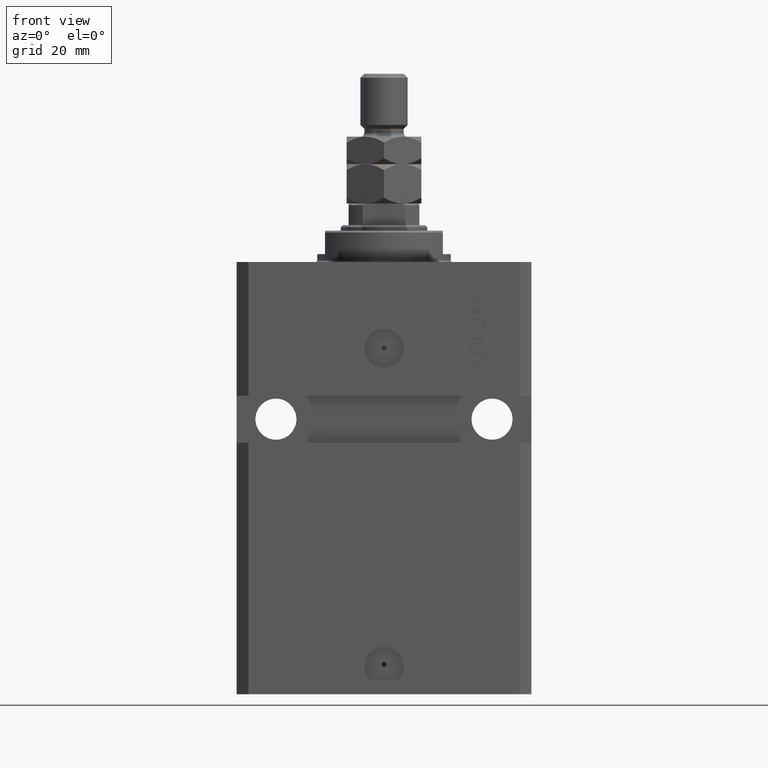
[diagram: clean part render]
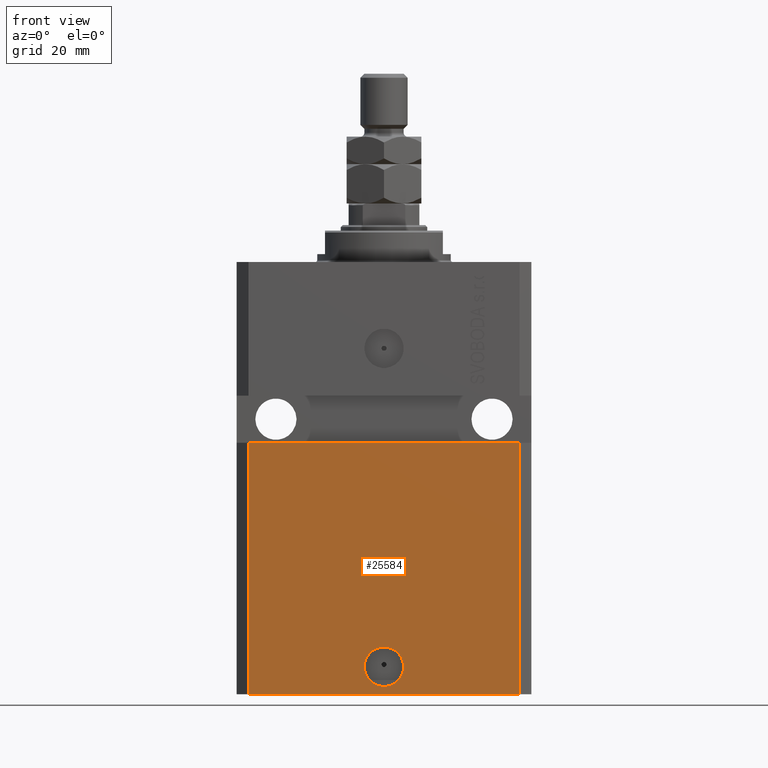
[diagram: same view with one face highlighted and labeled with its STEP entity id]
A machine part, front view. The second image highlights one B-rep face of the part: STEP entity #25584.
In plain terms, the highlighted planar face has unit normal (0, -1, 0).
Its self-contained STEP definition (entity closure, byte-faithful):
#333 = CIRCLE ( 'NONE', #4248, 5.000000000000006217 ) ;
#442 = EDGE_CURVE ( 'NONE', #43122, #3457, #333, .T. ) ;
#1061 = VERTEX_POINT ( 'NONE', #10013 ) ;
#1438 = DIRECTION ( 'NONE',  ( 1.000000000000000000, 0.000000000000000000, 0.000000000000000000 ) ) ;
#1645 = CARTESIAN_POINT ( 'NONE',  ( -37.50000000000000000, -27.50000000000000000, -46.00000000000000000 ) ) ;
#3457 = VERTEX_POINT ( 'NONE', #40138 ) ;
#3612 = VERTEX_POINT ( 'NONE', #37442 ) ;
#3928 = EDGE_CURVE ( 'NONE', #3457, #43122, #38749, .T. ) ;
#3953 = ORIENTED_EDGE ( 'NONE', *, *, #9927, .T. ) ;
#4248 = AXIS2_PLACEMENT_3D ( 'NONE', #41679, #19166, #44872 ) ;
#4925 = EDGE_CURVE ( 'NONE', #19337, #14293, #6098, .T. ) ;
#5312 = EDGE_LOOP ( 'NONE', ( #39299, #35615 ) ) ;
#6098 = LINE ( 'NONE', #47449, #20039 ) ;
#8271 = LINE ( 'NONE', #19299, #32573 ) ;
#9927 = EDGE_CURVE ( 'NONE', #19337, #3612, #8271, .T. ) ;
#10013 = CARTESIAN_POINT ( 'NONE',  ( 34.49999999999999289, -27.49999999999999289, -46.00000000000000711 ) ) ;
#10247 = DIRECTION ( 'NONE',  ( 0.000000000000000000, 0.000000000000000000, 1.000000000000000000 ) ) ;
#11598 = ORIENTED_EDGE ( 'NONE', *, *, #4925, .F. ) ;
#13731 = AXIS2_PLACEMENT_3D ( 'NONE', #40803, #30053, #37136 ) ;
#13789 = EDGE_CURVE ( 'NONE', #14293, #1061, #35177, .T. ) ;
#14293 = VERTEX_POINT ( 'NONE', #22604 ) ;
#14871 = CARTESIAN_POINT ( 'NONE',  ( 34.49999999999999289, -27.49999999999999645, -110.0000000000000000 ) ) ;
#18032 = VECTOR ( 'NONE', #44236, 1000.000000000000000 ) ;
#19166 = DIRECTION ( 'NONE',  ( 1.176083712526788232E-16, -1.000000000000000000, 0.000000000000000000 ) ) ;
#19299 = CARTESIAN_POINT ( 'NONE',  ( -34.49999999999998579, -27.49999999999999645, -110.0000000000000000 ) ) ;
#19337 = VERTEX_POINT ( 'NONE', #37052 ) ;
#19752 = DIRECTION ( 'NONE',  ( 1.000000000000000000, 9.251858538542972814E-17, -9.251858538542972814E-17 ) ) ;
#20039 = VECTOR ( 'NONE', #10247, 1000.000000000000000 ) ;
#22604 = CARTESIAN_POINT ( 'NONE',  ( -34.49999999999998579, -27.50000000000000000, -46.00000000000000000 ) ) ;
#22669 = DIRECTION ( 'NONE',  ( 0.000000000000000000, -0.000000000000000000, -1.000000000000000000 ) ) ;
#23145 = CARTESIAN_POINT ( 'NONE',  ( -34.49999999999998579, -27.49999999999999645, -110.0000000000000000 ) ) ;
#24937 = AXIS2_PLACEMENT_3D ( 'NONE', #23145, #41716, #22669 ) ;
#25584 = ADVANCED_FACE ( 'NONE', ( #26069, #26797 ), #26557, .T. ) ;
#26069 = FACE_BOUND ( 'NONE', #5312, .T. ) ;
#26557 = PLANE ( 'NONE',  #24937 ) ;
#26797 = FACE_OUTER_BOUND ( 'NONE', #44232, .T. ) ;
#27999 = VECTOR ( 'NONE', #19752, 1000.000000000000000 ) ;
#29905 = EDGE_CURVE ( 'NONE', #3612, #1061, #48400, .T. ) ;
#30053 = DIRECTION ( 'NONE',  ( 1.176083712526788232E-16, -1.000000000000000000, 0.000000000000000000 ) ) ;
#31289 = CARTESIAN_POINT ( 'NONE',  ( 5.000000000000006217, -27.49999999999999645, -103.0000000000000000 ) ) ;
#32573 = VECTOR ( 'NONE', #1438, 1000.000000000000000 ) ;
#33955 = ORIENTED_EDGE ( 'NONE', *, *, #13789, .F. ) ;
#35177 = LINE ( 'NONE', #1645, #27999 ) ;
#35389 = ORIENTED_EDGE ( 'NONE', *, *, #29905, .T. ) ;
#35615 = ORIENTED_EDGE ( 'NONE', *, *, #3928, .F. ) ;
#37052 = CARTESIAN_POINT ( 'NONE',  ( -34.49999999999998579, -27.49999999999999645, -110.0000000000000000 ) ) ;
#37136 = DIRECTION ( 'NONE',  ( 1.000000000000000000, 0.000000000000000000, 0.000000000000000000 ) ) ;
#37442 = CARTESIAN_POINT ( 'NONE',  ( 34.49999999999999289, -27.49999999999999645, -110.0000000000000000 ) ) ;
#38749 = CIRCLE ( 'NONE', #13731, 5.000000000000006217 ) ;
#39299 = ORIENTED_EDGE ( 'NONE', *, *, #442, .F. ) ;
#40138 = CARTESIAN_POINT ( 'NONE',  ( -5.000000000000006217, -27.49999999999999645, -103.0000000000000000 ) ) ;
#40803 = CARTESIAN_POINT ( 'NONE',  ( 0.000000000000000000, -27.49999999999999645, -103.0000000000000000 ) ) ;
#41679 = CARTESIAN_POINT ( 'NONE',  ( 0.000000000000000000, -27.49999999999999645, -103.0000000000000000 ) ) ;
#41716 = DIRECTION ( 'NONE',  ( 0.000000000000000000, -1.000000000000000000, 0.000000000000000000 ) ) ;
#43122 = VERTEX_POINT ( 'NONE', #31289 ) ;
#44232 = EDGE_LOOP ( 'NONE', ( #33955, #11598, #3953, #35389 ) ) ;
#44236 = DIRECTION ( 'NONE',  ( 0.000000000000000000, 0.000000000000000000, 1.000000000000000000 ) ) ;
#44872 = DIRECTION ( 'NONE',  ( 1.000000000000000000, 0.000000000000000000, 0.000000000000000000 ) ) ;
#47449 = CARTESIAN_POINT ( 'NONE',  ( -34.49999999999998579, -27.49999999999999645, -110.0000000000000000 ) ) ;
#48400 = LINE ( 'NONE', #14871, #18032 ) ;